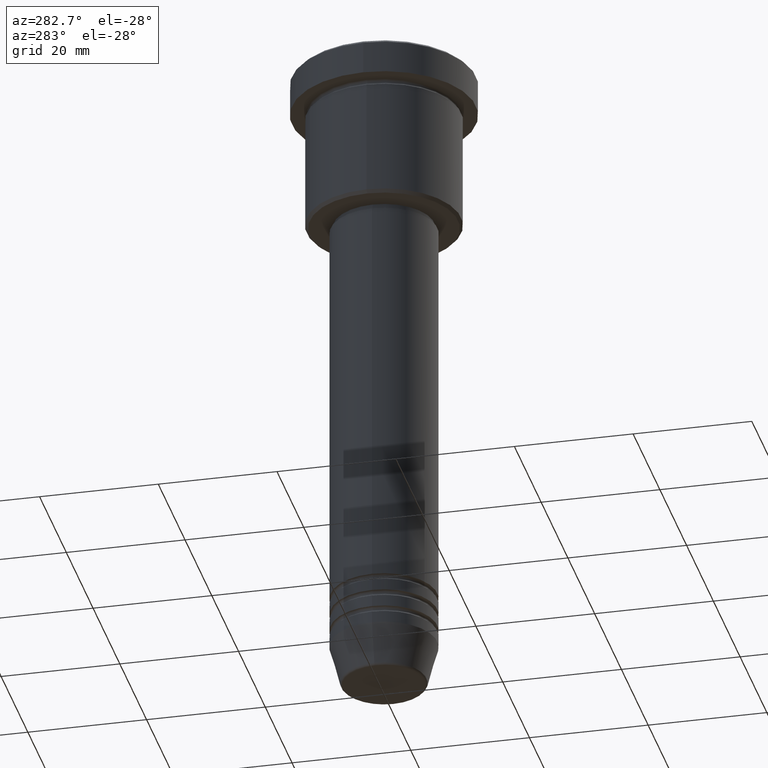
[diagram: clean part render]
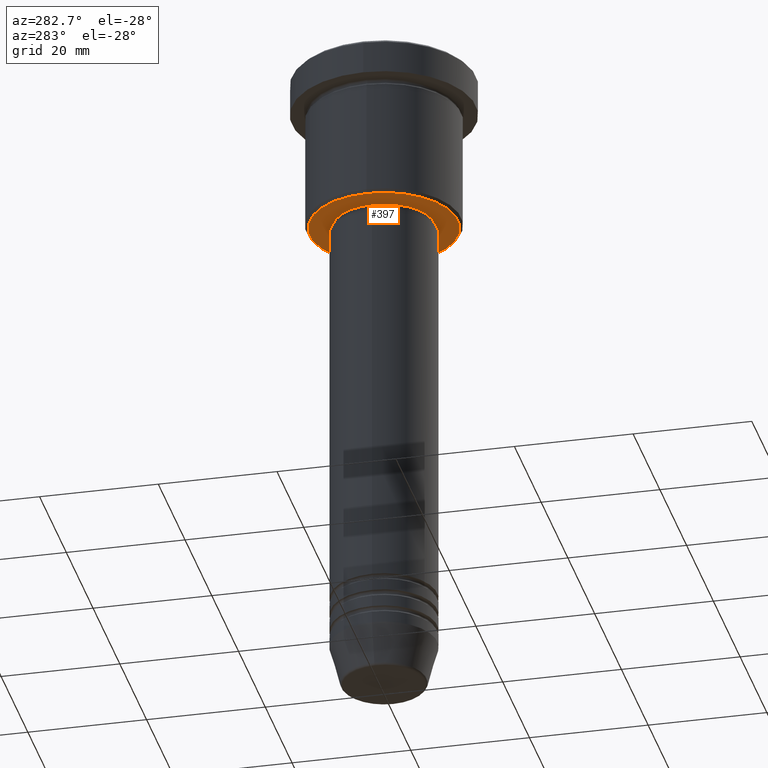
[diagram: same view with one face highlighted and labeled with its STEP entity id]
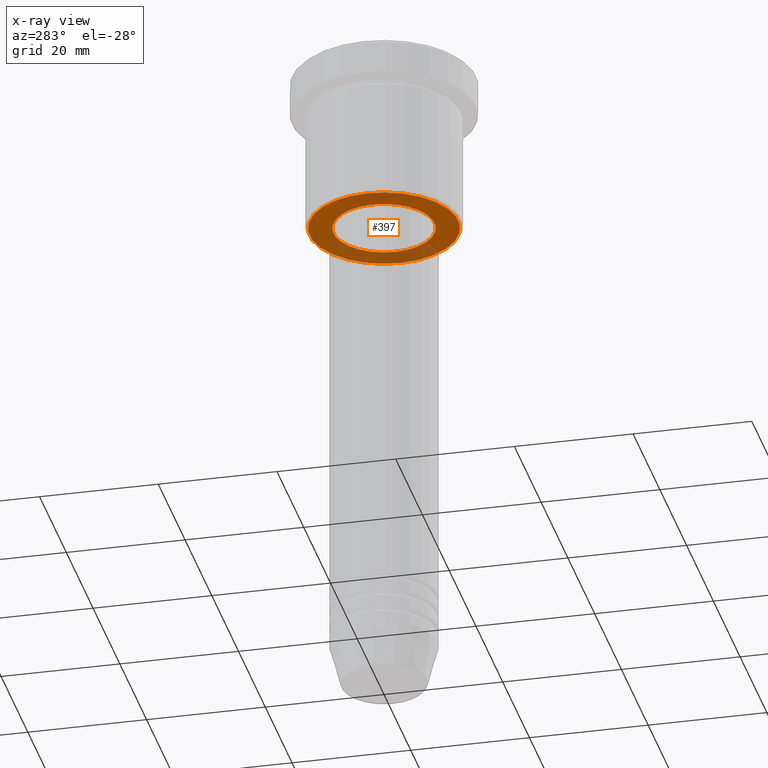
[diagram: x-ray of the same camera — body ghosted, the highlighted face saturated]
A machine part, auxiliary view. The second image highlights one B-rep face of the part: STEP entity #397.
The next image is the same camera in x-ray: the body ghosted, the highlighted face saturated — about 28% of this face is hidden behind the body in this view.
In plain terms, the highlighted planar face has unit normal (0, 0, -1).
Its self-contained STEP definition (entity closure, byte-faithful):
#45 = FACE_BOUND ( 'NONE', #562, .T. ) ;
#52 = DIRECTION ( 'NONE',  ( -1.000000000000000000, 0.000000000000000000, -0.000000000000000000 ) ) ;
#79 = EDGE_LOOP ( 'NONE', ( #875, #1132 ) ) ;
#80 = CARTESIAN_POINT ( 'NONE',  ( 0.000000000000000000, 0.000000000000000000, -26.99999999999999645 ) ) ;
#180 = AXIS2_PLACEMENT_3D ( 'NONE', #196, #742, #1105 ) ;
#190 = DIRECTION ( 'NONE',  ( 1.000000000000000000, 0.000000000000000000, 0.000000000000000000 ) ) ;
#194 = CARTESIAN_POINT ( 'NONE',  ( -12.49999999999998401, 1.561424668912874125E-15, -26.99999999999999645 ) ) ;
#196 = CARTESIAN_POINT ( 'NONE',  ( 0.000000000000000000, 0.000000000000000000, -27.00000000000000000 ) ) ;
#201 = DIRECTION ( 'NONE',  ( -1.000000000000000000, 0.000000000000000000, 0.000000000000000000 ) ) ;
#234 = EDGE_CURVE ( 'NONE', #792, #1061, #447, .T. ) ;
#336 = VERTEX_POINT ( 'NONE', #976 ) ;
#337 = DIRECTION ( 'NONE',  ( 0.000000000000000000, 0.000000000000000000, -1.000000000000000000 ) ) ;
#341 = DIRECTION ( 'NONE',  ( -0.000000000000000000, -0.000000000000000000, 1.000000000000000000 ) ) ;
#381 = VERTEX_POINT ( 'NONE', #194 ) ;
#397 = ADVANCED_FACE ( 'NONE', ( #775, #45 ), #1141, .T. ) ;
#414 = DIRECTION ( 'NONE',  ( 0.000000000000000000, 0.000000000000000000, -1.000000000000000000 ) ) ;
#429 = EDGE_CURVE ( 'NONE', #381, #336, #507, .T. ) ;
#447 = CIRCLE ( 'NONE', #180, 8.499999999999998224 ) ;
#448 = AXIS2_PLACEMENT_3D ( 'NONE', #783, #337, #1146 ) ;
#482 = EDGE_CURVE ( 'NONE', #1061, #792, #1176, .T. ) ;
#507 = CIRCLE ( 'NONE', #448, 12.49999999999998401 ) ;
#523 = CARTESIAN_POINT ( 'NONE',  ( 0.000000000000000000, 13.00000000000000000, -26.99999999999999645 ) ) ;
#562 = EDGE_LOOP ( 'NONE', ( #869, #1137 ) ) ;
#587 = EDGE_CURVE ( 'NONE', #336, #381, #1140, .T. ) ;
#623 = AXIS2_PLACEMENT_3D ( 'NONE', #1016, #341, #190 ) ;
#647 = AXIS2_PLACEMENT_3D ( 'NONE', #523, #414, #52 ) ;
#742 = DIRECTION ( 'NONE',  ( -0.000000000000000000, -0.000000000000000000, 1.000000000000000000 ) ) ;
#775 = FACE_OUTER_BOUND ( 'NONE', #79, .T. ) ;
#777 = AXIS2_PLACEMENT_3D ( 'NONE', #80, #1115, #201 ) ;
#783 = CARTESIAN_POINT ( 'NONE',  ( 0.000000000000000000, 0.000000000000000000, -26.99999999999999645 ) ) ;
#792 = VERTEX_POINT ( 'NONE', #886 ) ;
#869 = ORIENTED_EDGE ( 'NONE', *, *, #234, .T. ) ;
#875 = ORIENTED_EDGE ( 'NONE', *, *, #587, .T. ) ;
#886 = CARTESIAN_POINT ( 'NONE',  ( 8.499999999999998224, 0.000000000000000000, -27.00000000000000000 ) ) ;
#976 = CARTESIAN_POINT ( 'NONE',  ( 12.49999999999998401, 0.000000000000000000, -26.99999999999999645 ) ) ;
#1016 = CARTESIAN_POINT ( 'NONE',  ( 0.000000000000000000, 0.000000000000000000, -27.00000000000000000 ) ) ;
#1061 = VERTEX_POINT ( 'NONE', #1136 ) ;
#1105 = DIRECTION ( 'NONE',  ( 1.000000000000000000, 0.000000000000000000, 0.000000000000000000 ) ) ;
#1115 = DIRECTION ( 'NONE',  ( 0.000000000000000000, 0.000000000000000000, -1.000000000000000000 ) ) ;
#1132 = ORIENTED_EDGE ( 'NONE', *, *, #429, .T. ) ;
#1136 = CARTESIAN_POINT ( 'NONE',  ( -8.499999999999998224, 1.040949779275249943E-15, -27.00000000000000000 ) ) ;
#1137 = ORIENTED_EDGE ( 'NONE', *, *, #482, .T. ) ;
#1140 = CIRCLE ( 'NONE', #777, 12.49999999999998401 ) ;
#1141 = PLANE ( 'NONE',  #647 ) ;
#1146 = DIRECTION ( 'NONE',  ( -1.000000000000000000, 0.000000000000000000, 0.000000000000000000 ) ) ;
#1176 = CIRCLE ( 'NONE', #623, 8.499999999999998224 ) ;